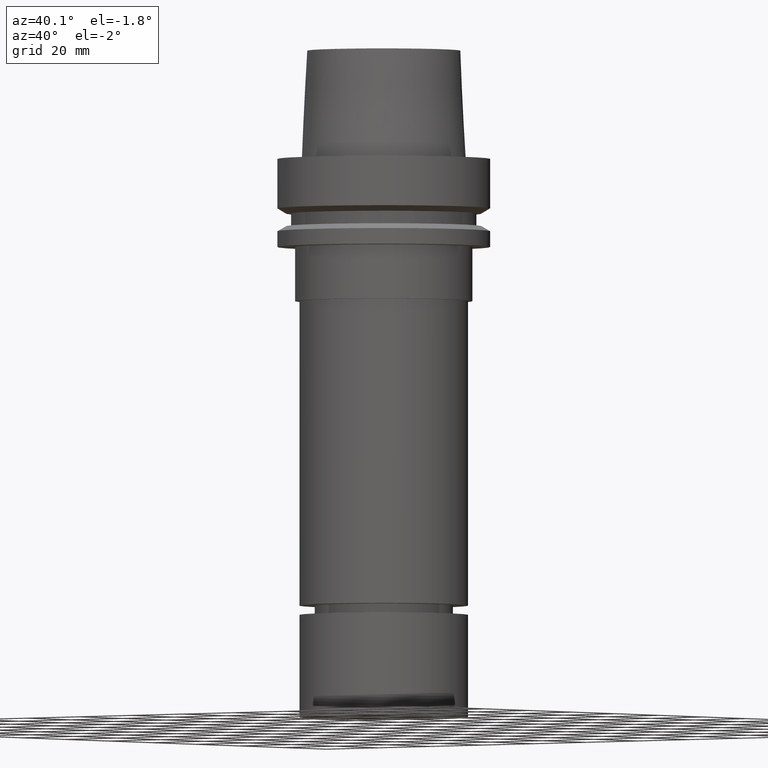
[diagram: clean part render]
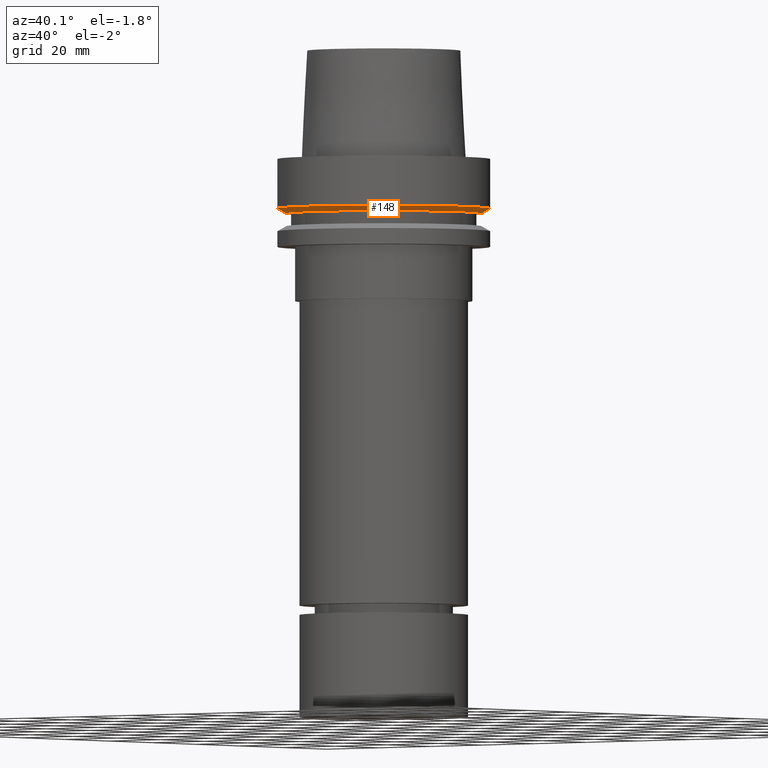
[diagram: same view with one face highlighted and labeled with its STEP entity id]
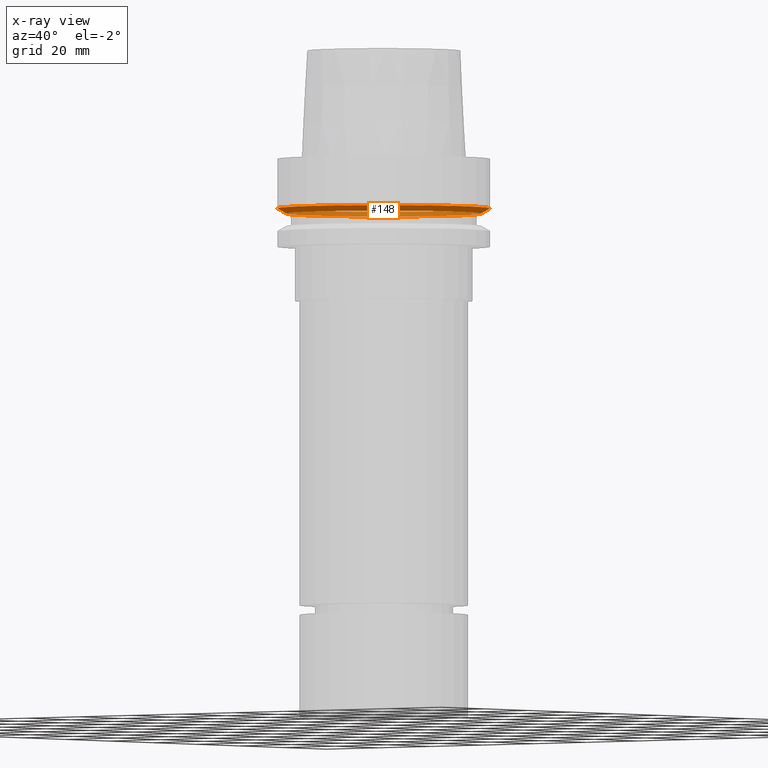
[diagram: x-ray of the same camera — body ghosted, the highlighted face saturated]
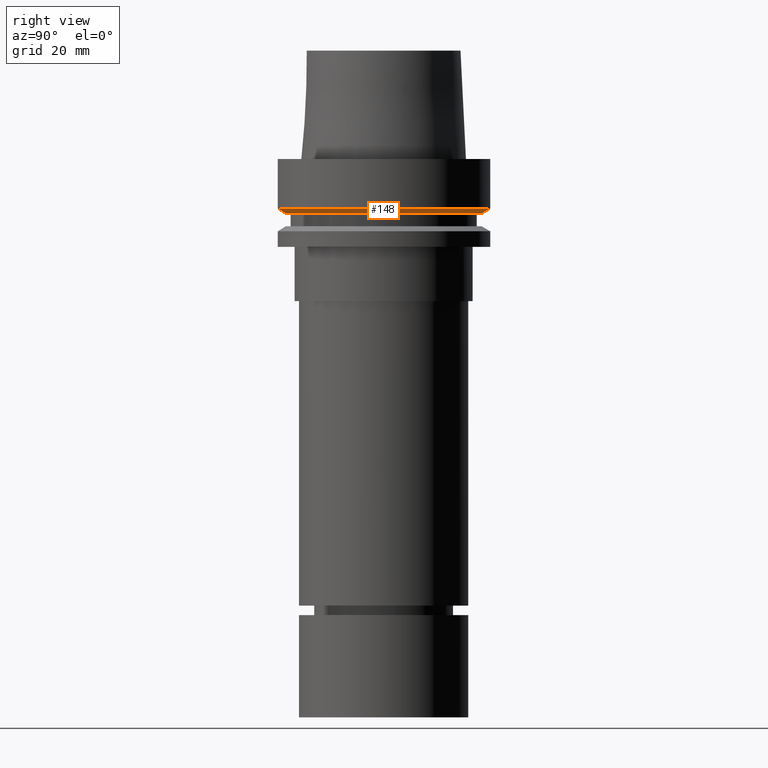
[diagram: same view with one face highlighted and labeled with its STEP entity id]
A machine part, auxiliary view. The second image highlights one B-rep face of the part: STEP entity #148.
The next image is the same camera in x-ray: the body ghosted, the highlighted face saturated — about 41% of this face is hidden behind the body in this view.
A second angle (right view) of the same face is appended — the face is thin or edge-on in the first view.
In plain terms, the highlighted conical surface has half-angle 60 deg.
Its self-contained STEP definition (entity closure, byte-faithful):
#148=ADVANCED_FACE('Unnamed[1]',(#321,#322),#323,.T.);
#164=EDGE_CURVE('Unnamed[1]',#346,#346,#347,.T.);
#194=EDGE_CURVE('Unnamed[1]',#392,#392,#393,.T.);
#321=FACE_BOUND('',#538,.T.);
#322=FACE_BOUND('',#539,.T.);
#323=CONICAL_SURFACE('',#540,30.1987976320959,1.04719755119657);
#346=VERTEX_POINT('',#570);
#347=CIRCLE('',#571,28.8975952641919);
#392=VERTEX_POINT('',#627);
#393=CIRCLE('',#628,31.5);
#538=EDGE_LOOP('',(#749));
#539=EDGE_LOOP('',(#750));
#540=AXIS2_PLACEMENT_3D('',#751,#752,#753);
#570=CARTESIAN_POINT('',(9.87371481812551E-016,28.8975952641919,-16.125));
#571=AXIS2_PLACEMENT_3D('',#777,#778,#779);
#627=CARTESIAN_POINT('',(8.95369947681261E-016,31.5,-14.6225009252407));
#628=AXIS2_PLACEMENT_3D('',#826,#827,#828);
#749=ORIENTED_EDGE('',*,*,#194,.F.);
#750=ORIENTED_EDGE('',*,*,#164,.T.);
#751=CARTESIAN_POINT('',(9.41370714746907E-016,1.88274142949381E-015,-15.3737504626203));
#752=DIRECTION('',(-6.12323399573677E-017,-1.22464679914735E-016,1.0));
#753=DIRECTION('',(-1.23259516440783E-032,1.0,1.22464679914735E-016));
#777=CARTESIAN_POINT('',(9.87371481812552E-016,1.9747429636251E-015,-16.125));
#778=DIRECTION('',(-6.12323399573677E-017,-1.22464679914735E-016,1.0));
#779=DIRECTION('',(-1.23259516440783E-032,1.0,1.22464679914735E-016));
#826=CARTESIAN_POINT('',(8.95369947681262E-016,1.79073989536252E-015,-14.6225009252407));
#827=DIRECTION('',(-6.12323399573677E-017,-1.22464679914735E-016,1.0));
#828=DIRECTION('',(-1.23259516440783E-032,1.0,1.22464679914735E-016));